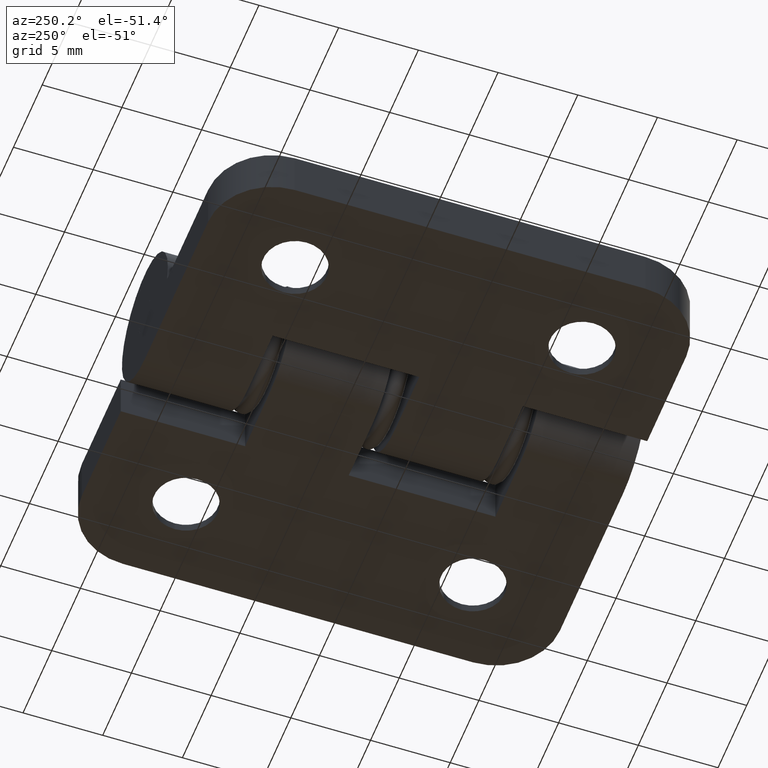
[diagram: clean part render]
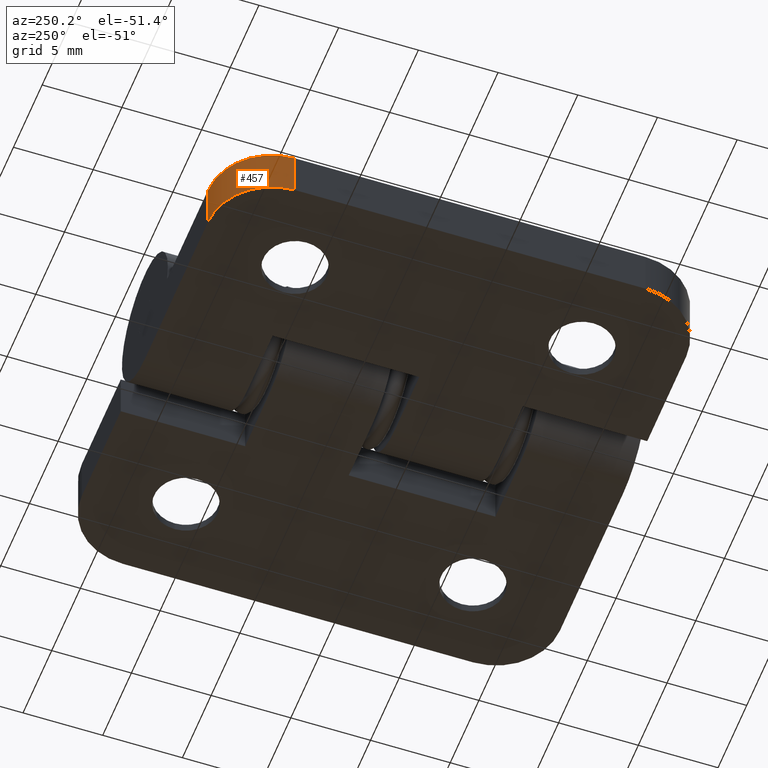
[diagram: same view with one face highlighted and labeled with its STEP entity id]
A machine part, auxiliary view. The second image highlights one B-rep face of the part: STEP entity #457.
In plain terms, the highlighted cylindrical surface (partial cylindrical patch) has radius 4 mm, axis along (0, 0, -1).
Its self-contained STEP definition (entity closure, byte-faithful):
#60=LINE('',#773,#88);
#62=LINE('',#778,#90);
#88=VECTOR('',#624,3.);
#90=VECTOR('',#630,3.);
#110=CYLINDRICAL_SURFACE('',#506,4.);
#150=FACE_OUTER_BOUND('',#187,.T.);
#187=EDGE_LOOP('',(#387,#388,#389,#390));
#218=CIRCLE('',#494,4.);
#225=CIRCLE('',#507,4.);
#254=VERTEX_POINT('',#742);
#255=VERTEX_POINT('',#744);
#264=VERTEX_POINT('',#772);
#265=VERTEX_POINT('',#776);
#298=EDGE_CURVE('',#255,#254,#218,.T.);
#312=EDGE_CURVE('',#264,#255,#60,.T.);
#314=EDGE_CURVE('',#265,#264,#225,.T.);
#315=EDGE_CURVE('',#254,#265,#62,.T.);
#387=ORIENTED_EDGE('',*,*,#314,.T.);
#388=ORIENTED_EDGE('',*,*,#312,.T.);
#389=ORIENTED_EDGE('',*,*,#298,.T.);
#390=ORIENTED_EDGE('',*,*,#315,.T.);
#457=ADVANCED_FACE('',(#150),#110,.T.);
#494=AXIS2_PLACEMENT_3D('',#745,#593,#594);
#506=AXIS2_PLACEMENT_3D('',#775,#626,#627);
#507=AXIS2_PLACEMENT_3D('',#777,#628,#629);
#593=DIRECTION('center_axis',(0.,0.,-1.));
#594=DIRECTION('ref_axis',(0.707106781186548,-0.707106781186548,0.));
#624=DIRECTION('',(0.,0.,1.));
#626=DIRECTION('center_axis',(0.,0.,-1.));
#627=DIRECTION('ref_axis',(0.707106781186548,-0.707106781186548,0.));
#628=DIRECTION('center_axis',(0.,0.,1.));
#629=DIRECTION('ref_axis',(0.707106781186548,-0.707106781186548,0.));
#630=DIRECTION('',(0.,0.,-1.));
#742=CARTESIAN_POINT('',(-4.,0.,3.));
#744=CARTESIAN_POINT('',(0.,4.,3.));
#745=CARTESIAN_POINT('Origin',(-4.,4.,3.));
#772=CARTESIAN_POINT('',(0.,4.,0.));
#773=CARTESIAN_POINT('',(0.,4.,2.7389291403498));
#775=CARTESIAN_POINT('Origin',(-4.,4.,2.7389291403498));
#776=CARTESIAN_POINT('',(-4.,0.,0.));
#777=CARTESIAN_POINT('Origin',(-4.,4.,0.));
#778=CARTESIAN_POINT('',(-4.,0.,2.7389291403498));